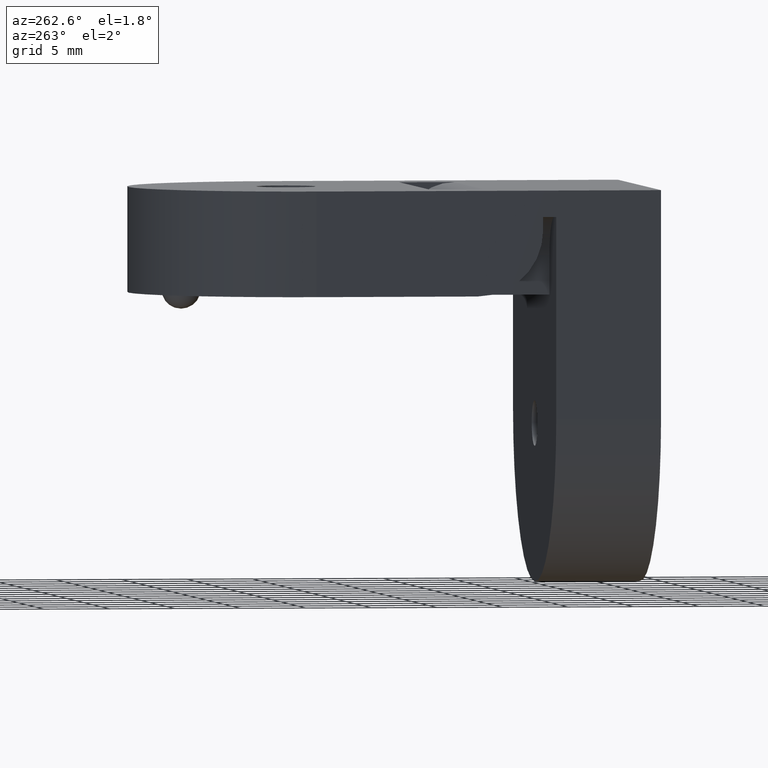
[diagram: clean part render]
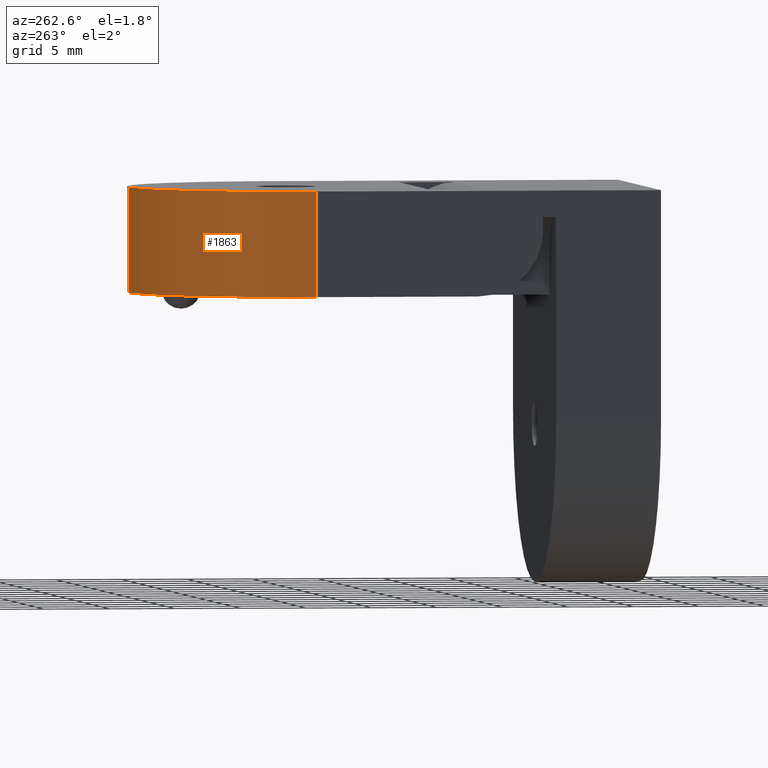
[diagram: same view with one face highlighted and labeled with its STEP entity id]
A machine part, auxiliary view. The second image highlights one B-rep face of the part: STEP entity #1863.
In plain terms, the highlighted cylindrical surface (partial cylindrical patch) has radius 12.7 mm, axis along (-0, -0, -1).
Its self-contained STEP definition (entity closure, byte-faithful):
#24 = VERTEX_POINT ( 'NONE', #1323 ) ;
#59 = EDGE_LOOP ( 'NONE', ( #1338, #730, #2829, #630 ) ) ;
#63 = AXIS2_PLACEMENT_3D ( 'NONE', #3023, #1610, #2740 ) ;
#88 = CARTESIAN_POINT ( 'NONE',  ( 1.201800217643921000E-014, 26.29999999999999700, -7.999999999999998200 ) ) ;
#94 = DIRECTION ( 'NONE',  ( -1.734720147809981100E-016, -1.206061786844441000E-031, -1.000000000000000000 ) ) ;
#334 = DIRECTION ( 'NONE',  ( -1.738121547108113700E-016, -1.000000000000000000, 0.0000000000000000000 ) ) ;
#423 = CARTESIAN_POINT ( 'NONE',  ( 1.542815815127709900E-014, 38.99999999999999300, -7.999999999999998200 ) ) ;
#455 = CARTESIAN_POINT ( 'NONE',  ( -12.69999999999998500, 26.30000000000000400, 3.469446951953614200E-015 ) ) ;
#479 = EDGE_CURVE ( 'NONE', #1162, #2764, #1547, .T. ) ;
#630 = ORIENTED_EDGE ( 'NONE', *, *, #479, .F. ) ;
#730 = ORIENTED_EDGE ( 'NONE', *, *, #794, .T. ) ;
#742 = CARTESIAN_POINT ( 'NONE',  ( -12.69999999999998500, 26.30000000000000400, 3.469446951953614200E-015 ) ) ;
#794 = EDGE_CURVE ( 'NONE', #24, #3061, #1994, .T. ) ;
#1162 = VERTEX_POINT ( 'NONE', #742 ) ;
#1323 = CARTESIAN_POINT ( 'NONE',  ( 1.681593426952508600E-014, 38.99999999999999300, 1.734723475976807100E-015 ) ) ;
#1338 = ORIENTED_EDGE ( 'NONE', *, *, #1842, .F. ) ;
#1352 = VECTOR ( 'NONE', #94, 1000.000000000000000 ) ;
#1366 = DIRECTION ( 'NONE',  ( -1.738121547108113700E-016, -1.000000000000000000, -1.213184216936841500E-031 ) ) ;
#1478 = CIRCLE ( 'NONE', #2798, 12.69999999999999900 ) ;
#1547 = LINE ( 'NONE', #455, #2729 ) ;
#1610 = DIRECTION ( 'NONE',  ( -1.734720147809981100E-016, -1.206061786844441000E-031, -1.000000000000000000 ) ) ;
#1655 = FACE_OUTER_BOUND ( 'NONE', #59, .T. ) ;
#1754 = DIRECTION ( 'NONE',  ( -1.734720147809981100E-016, -1.206061786844441000E-031, -1.000000000000000000 ) ) ;
#1842 = EDGE_CURVE ( 'NONE', #24, #1162, #2355, .T. ) ;
#1863 = ADVANCED_FACE ( 'NONE', ( #1655 ), #1995, .T. ) ;
#1994 = LINE ( 'NONE', #2213, #1352 ) ;
#1995 = CYLINDRICAL_SURFACE ( 'NONE', #63, 12.69999999999999600 ) ;
#2198 = CARTESIAN_POINT ( 'NONE',  ( -12.69999999999998700, 26.30000000000000400, -7.999999999999996400 ) ) ;
#2213 = CARTESIAN_POINT ( 'NONE',  ( 1.681593426952508600E-014, 38.99999999999999300, 1.734723475976807100E-015 ) ) ;
#2355 = CIRCLE ( 'NONE', #3041, 12.69999999999999900 ) ;
#2545 = CARTESIAN_POINT ( 'NONE',  ( 1.340577829468719800E-014, 26.29999999999999700, 1.734723475976807100E-015 ) ) ;
#2729 = VECTOR ( 'NONE', #3046, 1000.000000000000000 ) ;
#2740 = DIRECTION ( 'NONE',  ( 1.738121547108113000E-016, 1.000000000000000000, 1.213184216936842000E-031 ) ) ;
#2764 = VERTEX_POINT ( 'NONE', #2198 ) ;
#2786 = DIRECTION ( 'NONE',  ( 1.734720147809981100E-016, 1.206061786844441000E-031, 1.000000000000000000 ) ) ;
#2789 = EDGE_CURVE ( 'NONE', #2764, #3061, #1478, .T. ) ;
#2798 = AXIS2_PLACEMENT_3D ( 'NONE', #88, #1754, #334 ) ;
#2829 = ORIENTED_EDGE ( 'NONE', *, *, #2789, .F. ) ;
#3023 = CARTESIAN_POINT ( 'NONE',  ( 1.340577829468719800E-014, 26.29999999999999700, 1.734723475976807100E-015 ) ) ;
#3041 = AXIS2_PLACEMENT_3D ( 'NONE', #2545, #2786, #1366 ) ;
#3046 = DIRECTION ( 'NONE',  ( -1.734720147809981100E-016, -1.206061786844441000E-031, -1.000000000000000000 ) ) ;
#3061 = VERTEX_POINT ( 'NONE', #423 ) ;